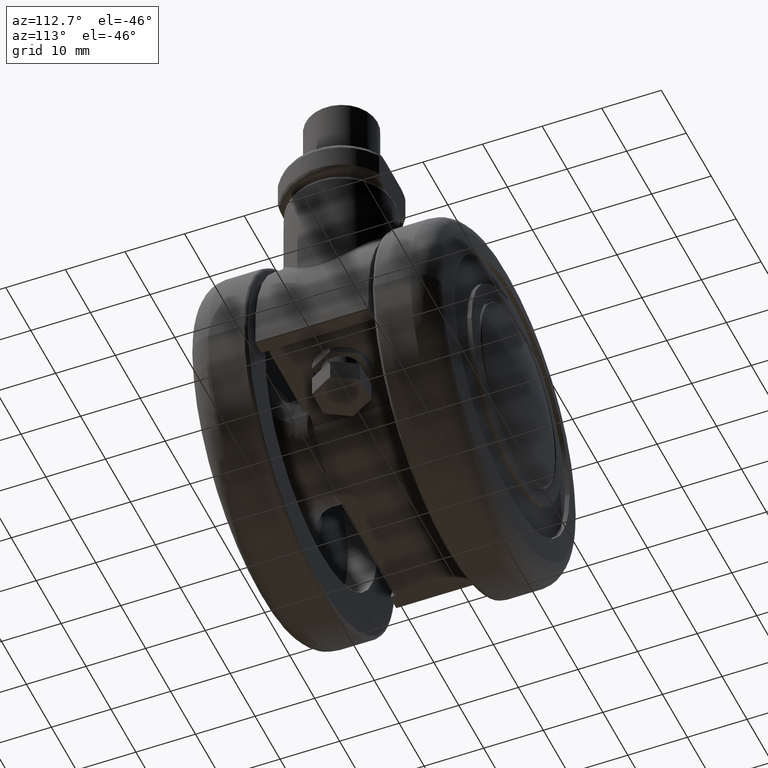
[diagram: clean part render]
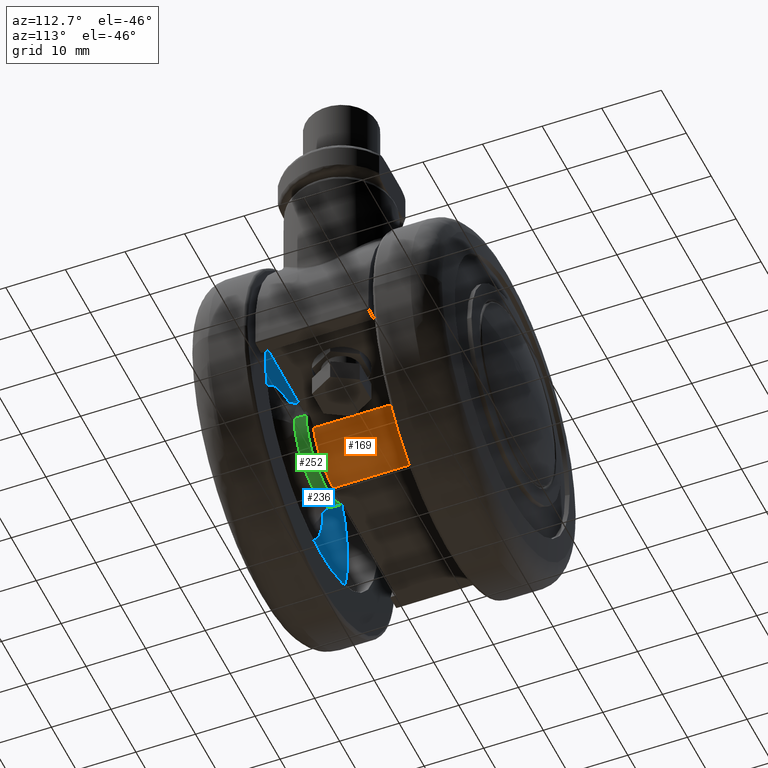
[diagram: same view with three faces highlighted in distinct colors, each labeled with its STEP entity id]
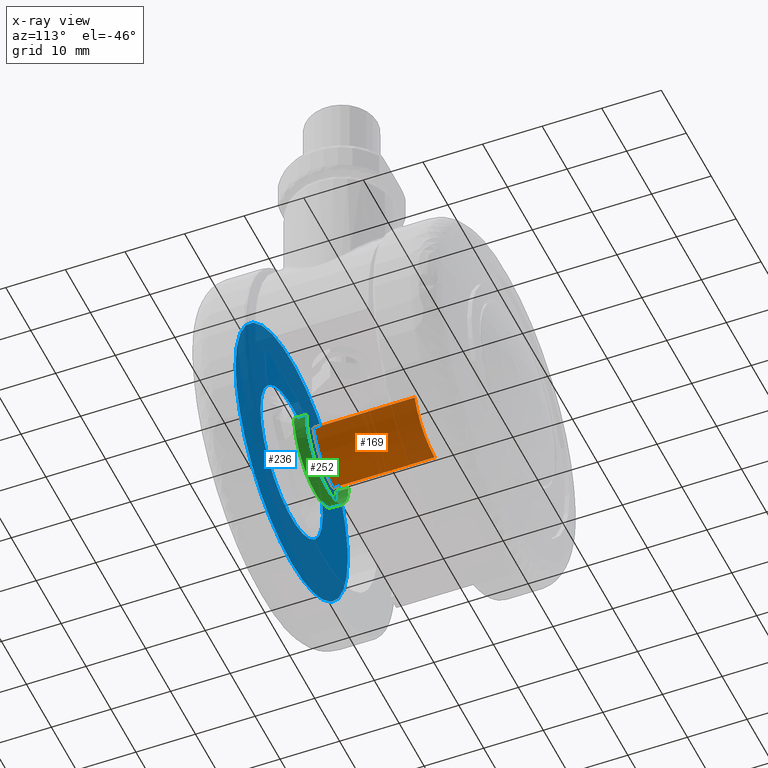
[diagram: x-ray of the same camera — body ghosted, the three highlighted faces saturated]
A machine part, auxiliary view with three faces highlighted in distinct colors.
The next image is the same camera in x-ray (body ghosted, the three faces saturated) — at least one of them is partly hidden behind the body in this view.
Their STEP definitions:

[orange] entity #169 — the highlighted cylindrical surface (partial cylindrical patch) has radius 8.5 mm, axis along (0, -1, 0).
#169=ADVANCED_FACE('',(#421),#420,.T.);
#420=CYLINDRICAL_SURFACE('',#2030,8.50000000000E+00);
#421=FACE_OUTER_BOUND('',#2031,.T.);
#2027=CARTESIAN_POINT('',(0.00000000000E+00,0.00000000000E+00,0.00000000000E+00));
#2028=DIRECTION('',(-0.00000000000E+00,-1.00000000000E+00,0.00000000000E+00));
#2029=DIRECTION('',(1.00000000000E+00,-0.00000000000E+00,-0.00000000000E+00));
#2030=AXIS2_PLACEMENT_3D('',#2027,#2028,#2029);
#2031=EDGE_LOOP('',(#4583,#4584,#4585,#4586));
#4583=ORIENTED_EDGE('',*,*,#5278,.F.);
#4584=ORIENTED_EDGE('',*,*,#5302,.T.);
#4585=ORIENTED_EDGE('',*,*,#5284,.F.);
#4586=ORIENTED_EDGE('',*,*,#5303,.T.);
#5278=EDGE_CURVE('',#5971,#5978,#5979,.T.);
#5284=EDGE_CURVE('',#6012,#6019,#6020,.T.);
#5302=EDGE_CURVE('',#5971,#6019,#6142,.T.);
#5303=EDGE_CURVE('',#6012,#5978,#6148,.T.);
#5971=VERTEX_POINT('',#8422);
#5978=VERTEX_POINT('',#8427);
#5979=CIRCLE('',#8431,8.50000000000E+00);
#6012=VERTEX_POINT('',#8450);
#6019=VERTEX_POINT('',#8454);
#6020=CIRCLE('',#8458,8.50000000000E+00);
#6142=LINE('',#8533,#8534);
#6148=LINE('',#8536,#8537);
#8422=CARTESIAN_POINT('',(8.01387685345E+00,8.50000000000E+00,-2.83333333333E+00));
#8427=CARTESIAN_POINT('',(5.20474889638E-16,8.50000000000E+00,-8.50000000000E+00));
#8428=CARTESIAN_POINT('',(0.00000000000E+00,8.50000000000E+00,0.00000000000E+00));
#8429=DIRECTION('',(0.00000000000E+00,1.00000000000E+00,0.00000000000E+00));
#8430=DIRECTION('',(-9.42809041582E-01,0.00000000000E+00,3.33333333333E-01));
#8431=AXIS2_PLACEMENT_3D('',#8428,#8429,#8430);
#8450=CARTESIAN_POINT('',(-1.56142466891E-15,-8.50000000000E+00,-8.50000000000E+00));
#8454=CARTESIAN_POINT('',(8.01387685345E+00,-8.50000000000E+00,-2.83333333333E+00));
#8455=CARTESIAN_POINT('',(0.00000000000E+00,-8.50000000000E+00,0.00000000000E+00));
#8456=DIRECTION('',(0.00000000000E+00,-1.00000000000E+00,-0.00000000000E+00));
#8457=DIRECTION('',(1.83697019872E-16,-0.00000000000E+00,1.00000000000E+00));
#8458=AXIS2_PLACEMENT_3D('',#8455,#8456,#8457);
#8533=CARTESIAN_POINT('',(8.01387685345E+00,8.50000000000E+00,-2.83333333333E+00));
#8534=VECTOR('',#8535,1.70000000000E+01);
#8535=DIRECTION('',(0.00000000000E+00,-1.00000000000E+00,0.00000000000E+00));
#8536=CARTESIAN_POINT('',(-1.56142466891E-15,-8.50000000000E+00,-8.50000000000E+00));
#8537=VECTOR('',#8538,1.70000000000E+01);
#8538=DIRECTION('',(1.22464679915E-16,1.00000000000E+00,0.00000000000E+00));

[blue] entity #236 — the highlighted planar face has unit normal (0, -1, 0).
#236=ADVANCED_FACE('',(#1098,#1099),#1097,.F.);
#1097=PLANE('',#3559);
#1098=FACE_OUTER_BOUND('',#3560,.T.);
#1099=FACE_BOUND('',#3561,.T.);
#3556=CARTESIAN_POINT('',(-3.32116910422E+01,-4.44018927710E+01,7.00000000000E+00));
#3557=DIRECTION('',(0.00000000000E+00,0.00000000000E+00,1.00000000000E+00));
#3558=DIRECTION('',(1.00000000000E+00,0.00000000000E+00,0.00000000000E+00));
#3559=AXIS2_PLACEMENT_3D('',#3556,#3557,#3558);
#3560=EDGE_LOOP('',(#4884,#4885,#4886));
#3561=EDGE_LOOP('',(#4887,#4888));
#4884=ORIENTED_EDGE('',*,*,#5428,.F.);
#4885=ORIENTED_EDGE('',*,*,#5429,.F.);
#4886=ORIENTED_EDGE('',*,*,#5430,.F.);
#4887=ORIENTED_EDGE('',*,*,#5431,.T.);
#4888=ORIENTED_EDGE('',*,*,#5432,.T.);
#5428=EDGE_CURVE('',#6967,#6968,#6969,.T.);
#5429=EDGE_CURVE('',#6975,#6967,#6976,.T.);
#5430=EDGE_CURVE('',#6968,#6975,#6982,.T.);
#5431=EDGE_CURVE('',#6988,#6989,#6990,.T.);
#5432=EDGE_CURVE('',#6989,#6988,#6996,.T.);
#6967=VERTEX_POINT('',#9196);
#6968=VERTEX_POINT('',#9197);
#6969=CIRCLE('',#9201,2.25000000000E+01);
#6975=VERTEX_POINT('',#9202);
#6976=CIRCLE('',#9206,2.25000000000E+01);
#6982=CIRCLE('',#9210,2.25000000000E+01);
#6988=VERTEX_POINT('',#9211);
#6989=VERTEX_POINT('',#9212);
#6990=CIRCLE('',#9216,1.25000000000E+01);
#6996=CIRCLE('',#9220,1.25000000000E+01);
#9196=CARTESIAN_POINT('',(2.24999999999E+01,-5.45502832697E-05,7.00000000000E+00));
#9197=CARTESIAN_POINT('',(-2.23970834024E+01,2.14957090231E+00,7.00000000000E+00));
#9198=CARTESIAN_POINT('',(0.00000000000E+00,0.00000000000E+00,7.00000000000E+00));
#9199=DIRECTION('',(0.00000000000E+00,0.00000000000E+00,1.00000000000E+00));
#9200=DIRECTION('',(-9.95425928997E-01,9.55364845470E-02,0.00000000000E+00));
#9201=AXIS2_PLACEMENT_3D('',#9198,#9199,#9200);
#9202=CARTESIAN_POINT('',(-2.25000000000E+01,-8.03386128400E-08,7.00000000000E+00));
#9203=CARTESIAN_POINT('',(0.00000000000E+00,0.00000000000E+00,7.00000000000E+00));
#9204=DIRECTION('',(0.00000000000E+00,0.00000000000E+00,1.00000000000E+00));
#9205=DIRECTION('',(-9.95425928997E-01,9.55364845470E-02,0.00000000000E+00));
#9206=AXIS2_PLACEMENT_3D('',#9203,#9204,#9205);
#9207=CARTESIAN_POINT('',(0.00000000000E+00,0.00000000000E+00,7.00000000000E+00));
#9208=DIRECTION('',(0.00000000000E+00,0.00000000000E+00,1.00000000000E+00));
#9209=DIRECTION('',(-9.95425928997E-01,9.55364845470E-02,0.00000000000E+00));
#9210=AXIS2_PLACEMENT_3D('',#9207,#9208,#9209);
#9211=CARTESIAN_POINT('',(1.25000000000E+01,0.00000000000E+00,7.00000000000E+00));
#9212=CARTESIAN_POINT('',(-1.25000000000E+01,0.00000000000E+00,7.00000000000E+00));
#9213=CARTESIAN_POINT('',(0.00000000000E+00,0.00000000000E+00,7.00000000000E+00));
#9214=DIRECTION('',(0.00000000000E+00,0.00000000000E+00,1.00000000000E+00));
#9215=DIRECTION('',(1.00000000000E+00,-1.22460635382E-16,0.00000000000E+00));
#9216=AXIS2_PLACEMENT_3D('',#9213,#9214,#9215);
#9217=CARTESIAN_POINT('',(0.00000000000E+00,0.00000000000E+00,7.00000000000E+00));
#9218=DIRECTION('',(0.00000000000E+00,0.00000000000E+00,1.00000000000E+00));
#9219=DIRECTION('',(1.00000000000E+00,-1.22460635382E-16,0.00000000000E+00));
#9220=AXIS2_PLACEMENT_3D('',#9217,#9218,#9219);

[green] entity #252 — the highlighted cylindrical surface (partial cylindrical patch) has radius 8.5 mm, axis along (-0, 1, -0).
#252=ADVANCED_FACE('',(#1262),#1261,.T.);
#1261=CYLINDRICAL_SURFACE('',#3889,8.50000000000E+00);
#1262=FACE_OUTER_BOUND('',#3890,.T.);
#3886=CARTESIAN_POINT('',(0.00000000000E+00,0.00000000000E+00,2.00767672062E+00));
#3887=DIRECTION('',(-0.00000000000E+00,-0.00000000000E+00,-1.00000000000E+00));
#3888=DIRECTION('',(-1.00000000000E+00,-0.00000000000E+00,-0.00000000000E+00));
#3889=AXIS2_PLACEMENT_3D('',#3886,#3887,#3888);
#3890=EDGE_LOOP('',(#4954,#4955,#4956,#4957,#4958,#4959,#4960,#4961));
#4954=ORIENTED_EDGE('',*,*,#5470,.T.);
#4955=ORIENTED_EDGE('',*,*,#5414,.T.);
#4956=ORIENTED_EDGE('',*,*,#5471,.T.);
#4957=ORIENTED_EDGE('',*,*,#5411,.T.);
#4958=ORIENTED_EDGE('',*,*,#5472,.T.);
#4959=ORIENTED_EDGE('',*,*,#5466,.T.);
#4960=ORIENTED_EDGE('',*,*,#5473,.T.);
#4961=ORIENTED_EDGE('',*,*,#5469,.F.);
#5411=EDGE_CURVE('',#6828,#6843,#6850,.T.);
#5414=EDGE_CURVE('',#6856,#6863,#6870,.T.);
#5466=EDGE_CURVE('',#7224,#7217,#7225,.T.);
#5469=EDGE_CURVE('',#7237,#7216,#7244,.T.);
#5470=EDGE_CURVE('',#7237,#6856,#7250,.T.);
#5471=EDGE_CURVE('',#6863,#6828,#7256,.T.);
#5472=EDGE_CURVE('',#6843,#7224,#7262,.T.);
#5473=EDGE_CURVE('',#7217,#7216,#7268,.T.);
#6828=VERTEX_POINT('',#9087);
#6843=VERTEX_POINT('',#9104);
#6850=(BOUNDED_CURVE() B_SPLINE_CURVE(3,(#9109,#9110,#9111,#9112,#9113,#9114),.UNSPECIFIED.,.F.,.F.) B_SPLINE_CURVE_WITH_KNOTS((4,2,4),(0.00000000000E+00,7.70611198926E-04,1.54122239785E-03),.UNSPECIFIED.) CURVE() GEOMETRIC_REPRESENTATION_ITEM() RATIONAL_B_SPLINE_CURVE((1.00000000000E+00,1.00000000000E+00,1.00000000000E+00,1.00000000000E+00,1.00000000000E+00,1.00000000000E+00)) REPRESENTATION_ITEM('') );
#6856=VERTEX_POINT('',#9115);
#6863=VERTEX_POINT('',#9120);
#6870=(BOUNDED_CURVE() B_SPLINE_CURVE(3,(#9125,#9126,#9127,#9128,#9129,#9130),.UNSPECIFIED.,.F.,.F.) B_SPLINE_CURVE_WITH_KNOTS((4,2,4),(0.00000000000E+00,7.70611198926E-04,1.54122239785E-03),.UNSPECIFIED.) CURVE() GEOMETRIC_REPRESENTATION_ITEM() RATIONAL_B_SPLINE_CURVE((1.00000000000E+00,1.00000000000E+00,1.00000000000E+00,1.00000000000E+00,1.00000000000E+00,1.00000000000E+00)) REPRESENTATION_ITEM('') );
#7216=VERTEX_POINT('',#9369);
#7217=VERTEX_POINT('',#9370);
#7224=VERTEX_POINT('',#9375);
#7225=(BOUNDED_CURVE() B_SPLINE_CURVE(1,(#9376,#9377),.UNSPECIFIED.,.F.,.F.) B_SPLINE_CURVE_WITH_KNOTS((2,2),(8.96818439170E-02,9.16666655561E-01),.UNSPECIFIED.) CURVE() GEOMETRIC_REPRESENTATION_ITEM() RATIONAL_B_SPLINE_CURVE((1.00000000000E+00,1.00000000000E+00)) REPRESENTATION_ITEM('') );
#7237=VERTEX_POINT('',#9382);
#7244=(BOUNDED_CURVE() B_SPLINE_CURVE(1,(#9387,#9388),.UNSPECIFIED.,.F.,.F.) B_SPLINE_CURVE_WITH_KNOTS((2,2),(8.96818539656E-02,9.16666666667E-01),.UNSPECIFIED.) CURVE() GEOMETRIC_REPRESENTATION_ITEM() RATIONAL_B_SPLINE_CURVE((7.50000000000E-01,7.50000000000E-01)) REPRESENTATION_ITEM('') );
#7250=CIRCLE('',#9392,8.50000000000E+00);
#7256=CIRCLE('',#9396,8.50000000000E+00);
#7262=CIRCLE('',#9400,8.50000000000E+00);
#7268=CIRCLE('',#9404,8.50000000000E+00);
#9087=CARTESIAN_POINT('',(-6.94562105686E+00,-4.89983143939E+00,3.00000000000E+00));
#9104=CARTESIAN_POINT('',(-7.71618902921E+00,-3.56516856061E+00,3.00000000000E+00));
#9109=CARTESIAN_POINT('',(-6.94562105686E+00,-4.89983143939E+00,3.00000000000E+00));
#9110=CARTESIAN_POINT('',(-7.09413831819E+00,-4.68930488754E+00,3.00000000000E+00));
#9111=CARTESIAN_POINT('',(-7.23255947090E+00,-4.47281547559E+00,3.01533041055E+00));
#9112=CARTESIAN_POINT('',(-7.48947477384E+00,-4.02787318455E+00,3.01535341529E+00));
#9113=CARTESIAN_POINT('',(-7.60807237796E+00,-3.79916830117E+00,3.00000000000E+00));
#9114=CARTESIAN_POINT('',(-7.71618902921E+00,-3.56516856061E+00,3.00000000000E+00));
#9115=CARTESIAN_POINT('',(7.71618902921E+00,-3.56516856061E+00,3.00000000000E+00));
#9120=CARTESIAN_POINT('',(6.94562105686E+00,-4.89983143939E+00,3.00000000000E+00));
#9125=CARTESIAN_POINT('',(7.71618902921E+00,-3.56516856061E+00,3.00000000000E+00));
#9126=CARTESIAN_POINT('',(7.60812631780E+00,-3.79905155774E+00,3.00000000000E+00));
#9127=CARTESIAN_POINT('',(7.48985156375E+00,-4.02717249839E+00,3.01533041055E+00));
#9128=CARTESIAN_POINT('',(7.23297788796E+00,-4.47213882287E+00,3.01535341529E+00));
#9129=CARTESIAN_POINT('',(7.09421245104E+00,-4.68919980256E+00,3.00000000000E+00));
#9130=CARTESIAN_POINT('',(6.94562105686E+00,-4.89983143939E+00,3.00000000000E+00));
#9369=CARTESIAN_POINT('',(8.50000000000E+00,0.00000000000E+00,1.00000000000E+00));
#9370=CARTESIAN_POINT('',(-8.50000000000E+00,8.88178419700E-16,1.00000000000E+00));
#9375=CARTESIAN_POINT('',(-8.50000000000E+00,2.68219846214E-07,3.00000000000E+00));
#9376=CARTESIAN_POINT('',(-8.50000000000E+00,0.00000000000E+00,3.00000002430E+00));
#9377=CARTESIAN_POINT('',(-8.50000000000E+00,0.00000000000E+00,1.00000002686E+00));
#9382=CARTESIAN_POINT('',(8.49999863885E+00,4.81035715597E-03,3.00000000000E+00));
#9387=CARTESIAN_POINT('',(8.50000000000E+00,-2.96059473233E-16,3.00000000000E+00));
#9388=CARTESIAN_POINT('',(8.50000000000E+00,-2.96059473233E-16,1.00000000000E+00));
#9389=CARTESIAN_POINT('',(0.00000000000E+00,0.00000000000E+00,3.00000000000E+00));
#9390=DIRECTION('',(0.00000000000E+00,0.00000000000E+00,-1.00000000000E+00));
#9391=DIRECTION('',(-9.06550555697E-02,-9.95882352941E-01,-0.00000000000E+00));
#9392=AXIS2_PLACEMENT_3D('',#9389,#9390,#9391);
#9393=CARTESIAN_POINT('',(0.00000000000E+00,0.00000000000E+00,3.00000000000E+00));
#9394=DIRECTION('',(0.00000000000E+00,0.00000000000E+00,-1.00000000000E+00));
#9395=DIRECTION('',(-8.17131889043E-01,5.76450757575E-01,-0.00000000000E+00));
#9396=AXIS2_PLACEMENT_3D('',#9393,#9394,#9395);
#9397=CARTESIAN_POINT('',(0.00000000000E+00,0.00000000000E+00,3.00000000000E+00));
#9398=DIRECTION('',(0.00000000000E+00,0.00000000000E+00,-1.00000000000E+00));
#9399=DIRECTION('',(1.00000000000E+00,-1.22464679915E-16,-0.00000000000E+00));
#9400=AXIS2_PLACEMENT_3D('',#9397,#9398,#9399);
#9401=CARTESIAN_POINT('',(0.00000000000E+00,0.00000000000E+00,1.00000000000E+00));
#9402=DIRECTION('',(0.00000000000E+00,0.00000000000E+00,1.00000000000E+00));
#9403=DIRECTION('',(1.00000000000E+00,-1.22460635382E-16,0.00000000000E+00));
#9404=AXIS2_PLACEMENT_3D('',#9401,#9402,#9403);